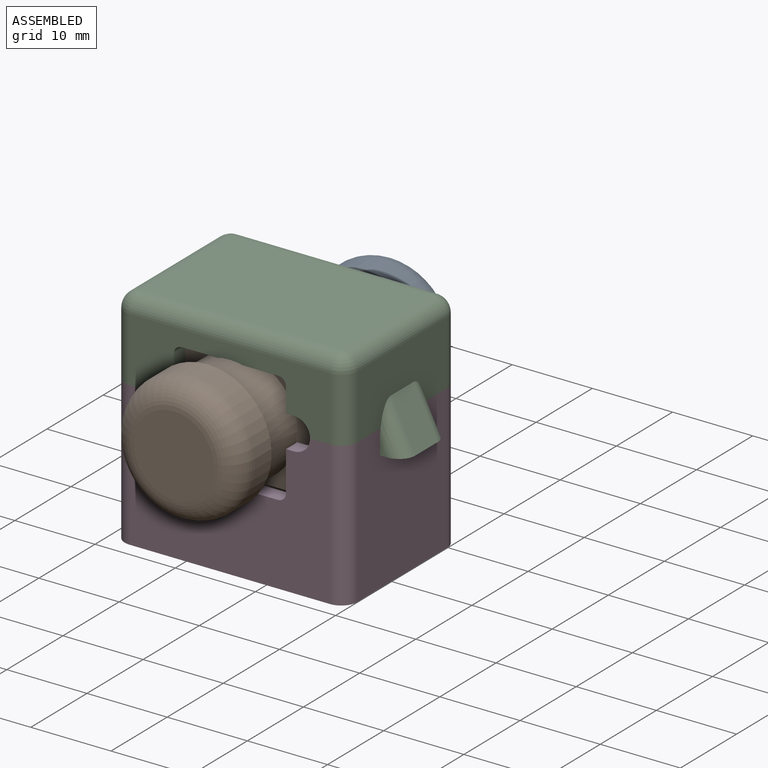
[diagram: assembled view]
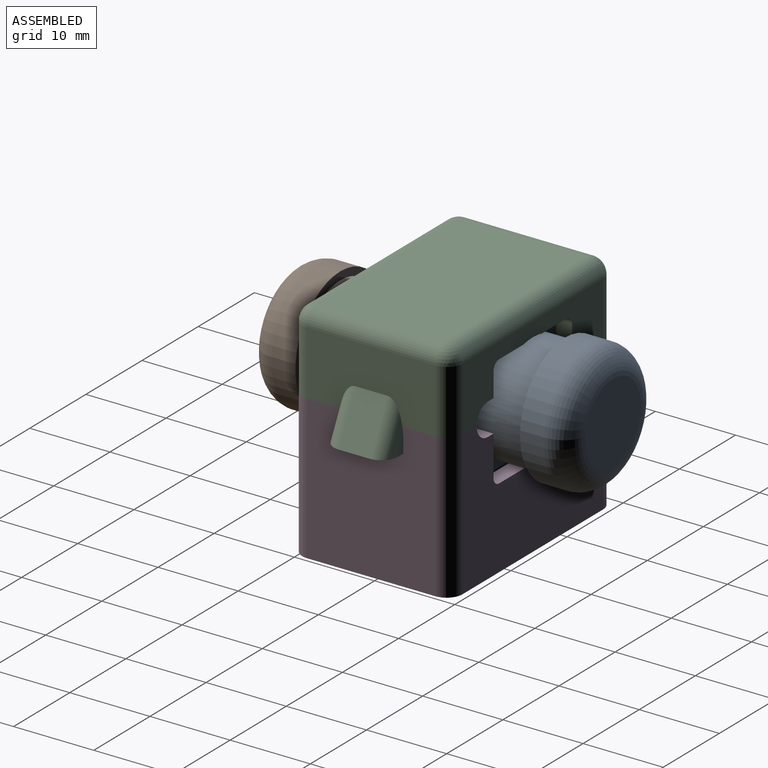
[diagram: assembled view, second angle]
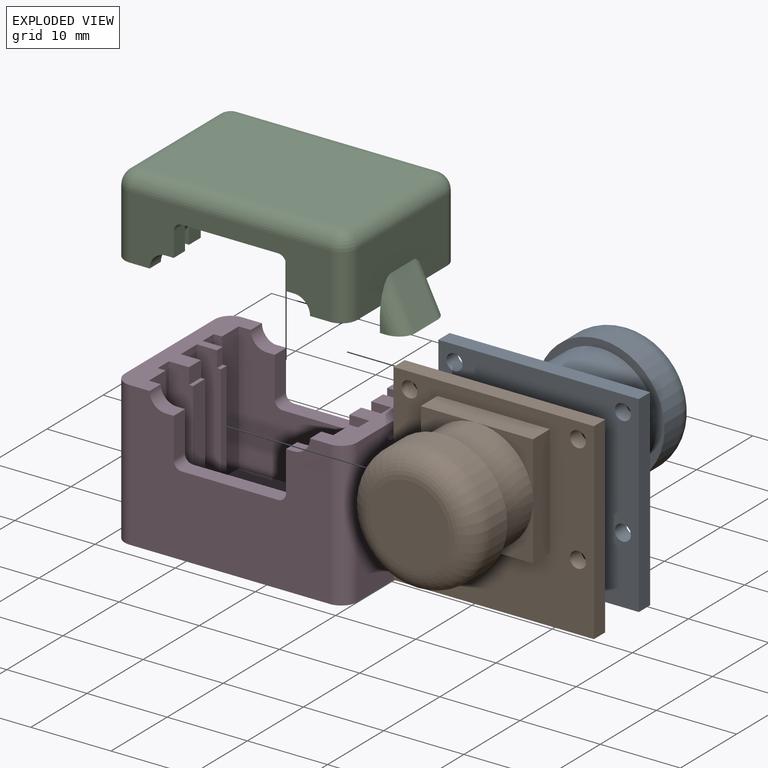
[diagram: exploded view]
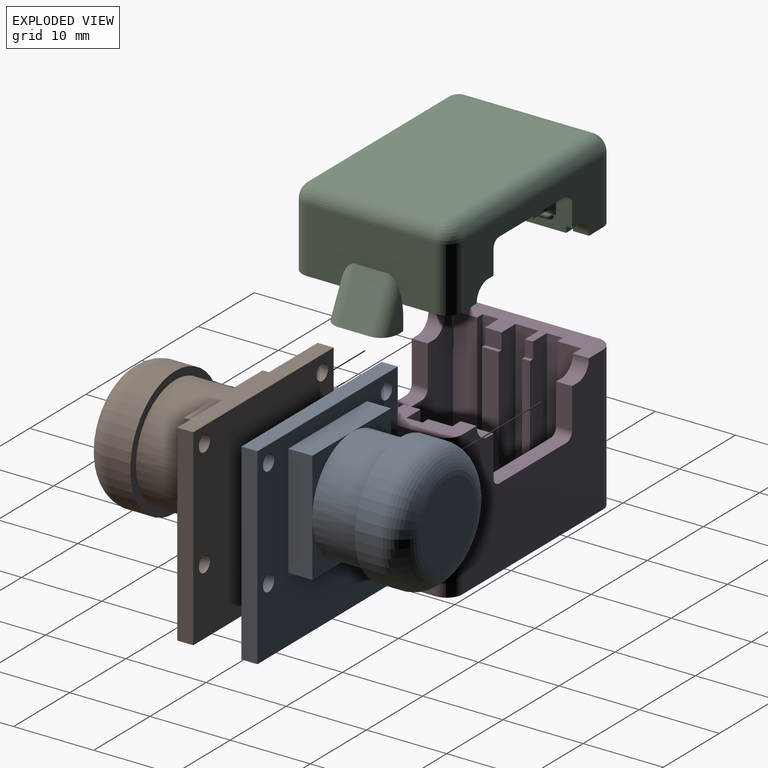
[diagram: exploded view, second angle]
ASSEMBLY  parts=4 mates=3
PART A: 23 faces, bbox 24x25x17 mm
  f0: plane 7x7mm, normal (0,0,1), area 10.5mm2, adj f13,f16,f18
  f1: plane 7x7mm, normal (0,0,1), area 10.5mm2, adj f13,f14,f18
  f2: plane 7x7mm, normal (0,0,1), area 10.5mm2, adj f14,f15,f18
  f3: plane 25x24mm, normal (0,0,1), area 391.4mm2, adj f5,f6,f7,f8,f9,f10,f11,f12
  f4: plane 25x24mm, normal (0,0,-1), area 587.4mm2, adj f5,f6,f7,f8,f9,f10,f11,f12
  f5: plane 24x2mm, normal (0,1,0), area 48mm2, adj f3,f4,f6,f8
  f6: plane 25x2mm, normal (-1,0,0), area 50mm2, adj f3,f4,f5,f7
  f7: plane 24x2mm, normal (0,-1,0), area 48mm2, adj f3,f4,f6,f8
  f8: plane 25x2mm, normal (1,0,0), area 50mm2, adj f3,f4,f5,f7
  f9: cylinder r=1mm len=2mm, axis (0,0,1), area 12.6mm2, adj f3,f4
  f10: cylinder r=1mm len=2mm, axis (0,0,1), area 12.6mm2, adj f3,f4
  f11: cylinder r=1mm len=2mm, axis (0,0,1), area 12.6mm2, adj f3,f4
  f12: cylinder r=1mm len=2mm, axis (0,0,1), area 12.6mm2, adj f3,f4
  f13: plane 14x3mm, normal (0,1,0), area 42mm2, adj f0,f1,f3,f14,f16
  f14: plane 14x3mm, normal (-1,0,0), area 42mm2, adj f1,f2,f3,f13,f15
  f15: plane 14x3mm, normal (0,-1,0), area 42mm2, adj f2,f3,f14,f16,f17
  f16: plane 14x3mm, normal (1,0,0), area 42mm2, adj f0,f3,f13,f15,f17
  f17: plane 7x7mm, normal (0,0,1), area 10.5mm2, adj f15,f16,f18
  f18: cylinder r=7mm len=14mm, axis (0,0,-1), area 263.9mm2, adj f0,f1,f2,f17,f21
  f19: cylinder r=8mm len=16mm, axis (0,0,-1), area 150.8mm2, adj f21,f22
  f20: plane 10x10mm, normal (0,0,1), area 78.5mm2, adj f22
  f21: plane 16x16mm, normal (0,0,-1), area 47.1mm2, adj f18,f19
  f22: torus R=5mm, axis (0,0,1), area 204.6mm2, adj f19,f20
PART B: same geometry as A
PART C: 94 faces, bbox 35x20x13.9 mm
  f0: plane 8.02x3.02mm, normal (-1,0,0), area 19.1mm2, adj f2,f81,f82,f83,f87,f88,f89,f90
  f1: plane 8.02x3.02mm, normal (1,0,0), area 19.1mm2, adj f19,f77,f78,f79,f84,f85,f86,f92
  f2: plane 20x4.5mm, normal (0,0,1), area 64.8mm2, adj f0,f3,f4,f5,f8,f9,f11,f12
  f3: plane 25x8mm, normal (0,1,0), area 106.1mm2, adj f2,f17,f18,f19,f43,f44,f45,f58
  f4: plane 25x8mm, normal (0,-1,0), area 106.1mm2, adj f2,f15,f16,f19,f42,f46,f47,f56
  f5: plane 23x8mm, normal (0,-1,0), area 90.1mm2, adj f2,f17,f18,f19,f23,f40,f41,f43
  f6: plane 6x1mm, normal (1,0,0), area 6mm2, adj f26,f27,f41,f55
  f7: plane 6x2.1mm, normal (1,0,0), area 12.6mm2, adj f29,f30,f41,f52
  f8: plane 23x8mm, normal (0,1,0), area 90.1mm2, adj f2,f15,f16,f19,f33,f34,f41,f42
  f9: plane 8x3mm, normal (0,-1,0), area 23mm2, adj f2,f10,f36,f41,f50,f51
  f10: plane 6x2.1mm, normal (-1,0,0), area 12.6mm2, adj f9,f11,f41,f50
  f11: plane 8x3mm, normal (0,1,0), area 23mm2, adj f2,f10,f37,f41,f50,f51
  f12: plane 8x3mm, normal (0,-1,0), area 23mm2, adj f2,f13,f37,f41,f48,f49
  f13: plane 6x2.1mm, normal (-1,0,0), area 12.6mm2, adj f12,f14,f41,f48
  f14: plane 8x3mm, normal (0,1,0), area 23mm2, adj f2,f13,f38,f41,f48,f49
  f15: plane 3x2mm, normal (-1,0,0), area 6mm2, adj f4,f8,f47,f61
  f16: plane 3x2mm, normal (1,0,0), area 6mm2, adj f4,f8,f46,f60
  f17: plane 3x2mm, normal (1,0,0), area 6mm2, adj f3,f5,f45,f63
  f18: plane 3x2mm, normal (-1,0,0), area 6mm2, adj f3,f5,f44,f62
  f19: plane 20x4.5mm, normal (0,0,1), area 62mm2, adj f1,f3,f4,f5,f8,f20,f23,f24
  f20: plane 16x8mm, normal (-1,0,0), area 107.7mm2, adj f19,f64,f65,f71,f76,f92,f93
  f21: plane 16x8mm, normal (1,0,0), area 107.7mm2, adj f2,f66,f67,f72,f80,f90,f91
  f22: plane 25x16mm, normal (0,0,-1), area 400mm2, adj f68,f71,f72,f75
  f23: plane 8x3mm, normal (1,0,0), area 24mm2, adj f5,f19,f24,f41
  f24: plane 8x1mm, normal (0,-1,0), area 8mm2, adj f19,f23,f25,f41
  f25: plane 8x2mm, normal (1,0,0), area 16mm2, adj f19,f24,f26,f41
  f26: plane 8x3mm, normal (0,1,0), area 23mm2, adj f6,f19,f25,f41,f54,f55
  f27: plane 8x3mm, normal (0,-1,0), area 23mm2, adj f6,f19,f28,f41,f54,f55
  f28: plane 8x2.9mm, normal (1,0,0), area 23.2mm2, adj f19,f27,f29,f41
  f29: plane 8x3mm, normal (0,1,0), area 23mm2, adj f7,f19,f28,f41,f52,f53
  f30: plane 8x3mm, normal (0,-1,0), area 23mm2, adj f7,f19,f31,f41,f52,f53
  f31: plane 8x2mm, normal (1,0,0), area 16mm2, adj f19,f30,f32,f41
  f32: plane 8x1mm, normal (0,1,0), area 8mm2, adj f19,f31,f33,f41
  f33: plane 8x3mm, normal (1,0,0), area 24mm2, adj f8,f19,f32,f41
  f34: plane 8x3mm, normal (-1,0,0), area 24mm2, adj f2,f8,f35,f41
  f35: plane 8x1mm, normal (0,1,0), area 8mm2, adj f2,f34,f36,f41
  f36: plane 8x2mm, normal (-1,0,0), area 16mm2, adj f2,f9,f35,f41
  f37: plane 8x1.8mm, normal (-1,0,0), area 14.4mm2, adj f2,f11,f12,f41
  f38: plane 8x2mm, normal (-1,0,0), area 16mm2, adj f2,f14,f39,f41
  f39: plane 8x1mm, normal (0,-1,0), area 8mm2, adj f2,f38,f40,f41
  f40: plane 8x3mm, normal (-1,0,0), area 24mm2, adj f2,f5,f39,f41
  f41: plane 25x16mm, normal (0,0,1), area 366.1mm2, adj f5,f6,f7,f8,f9,f10,f11,f12
  f42: plane 12x2mm, normal (0,0,1), area 24mm2, adj f4,f8,f60,f61
  f43: plane 12x2mm, normal (0,0,1), area 24mm2, adj f3,f5,f62,f63
  f44: plane 2x1mm, normal (0,0,1), area 2mm2, adj f3,f5,f18,f59
  f45: plane 2x1mm, normal (0,0,1), area 2mm2, adj f3,f5,f17,f58
  f46: plane 2x1mm, normal (0,0,1), area 2mm2, adj f4,f8,f16,f56
  f47: plane 2x1mm, normal (0,0,1), area 2mm2, adj f4,f8,f15,f57
  f48: plane 2.1x0.5mm, normal (0,0,1), area 1.1mm2, adj f12,f13,f14,f49
  f49: plane 2.1x2mm, normal (-1,0,0), area 4.2mm2, adj f2,f12,f14,f48
  f50: plane 2.1x0.5mm, normal (0,0,1), area 1.1mm2, adj f9,f10,f11,f51
  f51: plane 2.1x2mm, normal (-1,0,0), area 4.2mm2, adj f2,f9,f11,f50
  f52: plane 2.1x0.5mm, normal (0,0,1), area 1.1mm2, adj f7,f29,f30,f53
  f53: plane 2.1x2mm, normal (1,0,0), area 4.2mm2, adj f19,f29,f30,f52
  f54: plane 2x1mm, normal (1,0,0), area 2mm2, adj f19,f26,f27,f55
  f55: plane 1x0.5mm, normal (0,0,1), area 0.5mm2, adj f6,f26,f27,f54
  f56: cylinder r=2mm len=2mm, axis (0,-1,0), area 6.3mm2, adj f4,f8,f19,f46
  f57: cylinder r=2mm len=2mm, axis (0,1,0), area 6.3mm2, adj f2,f4,f8,f47
  f58: cylinder r=2mm len=2mm, axis (0,-1,0), area 6.3mm2, adj f3,f5,f19,f45
  f59: cylinder r=2mm len=2mm, axis (0,1,0), area 6.3mm2, adj f2,f3,f5,f44
  f60: cylinder r=1mm len=2mm, axis (0,-1,0), area 3.1mm2, adj f4,f8,f16,f42
  f61: cylinder r=1mm len=2mm, axis (0,1,0), area 3.1mm2, adj f4,f8,f15,f42
  f62: cylinder r=1mm len=2mm, axis (0,1,0), area 3.1mm2, adj f3,f5,f18,f43
  f63: cylinder r=1mm len=2mm, axis (0,-1,0), area 3.1mm2, adj f3,f5,f17,f43
  f64: cylinder r=2mm len=8mm, axis (0,0,1), area 25.1mm2, adj f3,f19,f20,f73
  f65: cylinder r=2mm len=8mm, axis (0,0,-1), area 25.1mm2, adj f4,f19,f20,f69
  f66: cylinder r=2mm len=8mm, axis (0,0,1), area 25.1mm2, adj f2,f4,f21,f70
  f67: cylinder r=2mm len=8mm, axis (0,0,-1), area 25.1mm2, adj f2,f3,f21,f74
  f68: cylinder r=2mm len=25mm, axis (1,0,0), area 78.5mm2, adj f4,f22,f69,f70
  f69: sphere r=2mm, area 6.3mm2, adj f65,f68,f71
  f70: sphere r=2mm, area 6.3mm2, adj f66,f68,f72
  f71: cylinder r=2mm len=16mm, axis (0,-1,0), area 50.3mm2, adj f20,f22,f69,f73
  f72: cylinder r=2mm len=16mm, axis (0,1,0), area 50.3mm2, adj f21,f22,f70,f74
  f73: sphere r=2mm, area 6.3mm2, adj f64,f71,f75
  f74: sphere r=2mm, area 6.3mm2, adj f67,f72,f75
  f75: cylinder r=2mm len=25mm, axis (-1,0,0), area 78.5mm2, adj f3,f22,f73,f74
  f76: plane 6x4mm, normal (-0.89,0,-0.45), area 26.8mm2, adj f20,f77,f92,f93
  f77: plane 8x3mm, normal (0,0,1), area 22.1mm2, adj f1,f76,f78,f79,f92,f93
  f78: plane 1.53x0.76mm, normal (0,-1,0), area 0.6mm2, adj f1,f77,f93
  f79: plane 1.53x0.76mm, normal (0,1,0), area 0.6mm2, adj f1,f77,f92
  f80: plane 6x4mm, normal (0.89,0,-0.45), area 26.8mm2, adj f21,f81,f90,f91
  f81: plane 8x3mm, normal (0,0,1), area 22.1mm2, adj f0,f80,f82,f83,f90,f91
  f82: plane 1.53x0.76mm, normal (0,-1,0), area 0.6mm2, adj f0,f81,f91
  f83: plane 1.53x0.76mm, normal (0,1,0), area 0.6mm2, adj f0,f81,f90
  f84: cylinder r=0.5mm len=4mm, axis (0,1,0), area 6.3mm2, adj f1,f85,f86
  f85: sphere r=0.5mm, area 0.8mm2, adj f1,f84
  f86: sphere r=0.5mm, area 0.8mm2, adj f1,f84
  f87: cylinder r=0.5mm len=4mm, axis (0,-1,0), area 6.3mm2, adj f0,f88,f89
  f88: sphere r=0.5mm, area 0.8mm2, adj f0,f87
  f89: sphere r=0.5mm, area 0.8mm2, adj f0,f87
  f90: cylinder r=2mm len=6.89mm, axis (0.45,0,0.89), area 15.4mm2, adj f0,f21,f80,f81,f83
  f91: cylinder r=2mm len=6.89mm, axis (-0.45,0,-0.89), area 15.4mm2, adj f0,f21,f80,f81,f82
  f92: cylinder r=2mm len=6.89mm, axis (0.45,0,-0.89), area 15.4mm2, adj f1,f20,f76,f77,f79
  f93: cylinder r=2mm len=6.89mm, axis (-0.45,0,0.89), area 15.4mm2, adj f1,f20,f76,f77,f78
PART D: 92 faces, bbox 29x20x18 mm
  f0: plane 18x16mm, normal (1,0,0), area 283.2mm2, adj f3,f21,f64,f65,f89,f90,f91
  f1: plane 18x16mm, normal (-1,0,0), area 283.2mm2, adj f20,f21,f62,f63,f86,f87,f88
  f2: plane 25x16mm, normal (0,0,1), area 197.5mm2, adj f6,f7,f8,f9,f10,f11,f12,f13
  f3: plane 20x4.5mm, normal (0,0,1), area 64.8mm2, adj f0,f4,f5,f6,f9,f10,f12,f13
  f4: plane 25x18mm, normal (0,1,0), area 328.1mm2, adj f3,f18,f19,f20,f21,f41,f42,f43
  f5: plane 25x18mm, normal (0,-1,0), area 328.1mm2, adj f3,f16,f17,f20,f21,f40,f44,f45
  f6: plane 23x16mm, normal (0,-1,0), area 246.1mm2, adj f2,f3,f18,f19,f20,f22,f39,f41
  f7: plane 14x1mm, normal (1,0,0), area 14mm2, adj f2,f25,f26,f53
  f8: plane 14x2.1mm, normal (1,0,0), area 29.4mm2, adj f2,f28,f29,f50
  f9: plane 23x16mm, normal (0,1,0), area 246.1mm2, adj f2,f3,f16,f17,f20,f32,f33,f40
  f10: plane 16x3mm, normal (0,-1,0), area 47mm2, adj f2,f3,f11,f35,f48,f49
  f11: plane 14x2.1mm, normal (-1,0,0), area 29.4mm2, adj f2,f10,f12,f48
  f12: plane 16x3mm, normal (0,1,0), area 47mm2, adj f2,f3,f11,f36,f48,f49
  f13: plane 16x3mm, normal (0,-1,0), area 47mm2, adj f2,f3,f14,f36,f46,f47
  f14: plane 14x2.1mm, normal (-1,0,0), area 29.4mm2, adj f2,f13,f15,f46
  f15: plane 16x3mm, normal (0,1,0), area 47mm2, adj f2,f3,f14,f37,f46,f47
  f16: plane 5x2mm, normal (-1,0,0), area 10mm2, adj f5,f9,f45,f59
  f17: plane 5x2mm, normal (1,0,0), area 10mm2, adj f5,f9,f44,f58
  f18: plane 5x2mm, normal (1,0,0), area 10mm2, adj f4,f6,f43,f61
  f19: plane 5x2mm, normal (-1,0,0), area 10mm2, adj f4,f6,f42,f60
  f20: plane 20x4.5mm, normal (0,0,1), area 62mm2, adj f1,f4,f5,f6,f9,f22,f23,f24
  f21: plane 29x20mm, normal (0,0,-1), area 408mm2, adj f0,f1,f4,f5,f62,f63,f64,f65
  f22: plane 16x3mm, normal (1,0,0), area 48mm2, adj f2,f6,f20,f23
  f23: plane 16x1mm, normal (0,-1,0), area 16mm2, adj f2,f20,f22,f24
  f24: plane 16x2mm, normal (1,0,0), area 32mm2, adj f2,f20,f23,f25
  f25: plane 16x3mm, normal (0,1,0), area 47mm2, adj f2,f7,f20,f24,f52,f53
  f26: plane 16x3mm, normal (0,-1,0), area 47mm2, adj f2,f7,f20,f27,f52,f53
  f27: plane 16x2.9mm, normal (1,0,0), area 46.4mm2, adj f2,f20,f26,f28
  f28: plane 16x3mm, normal (0,1,0), area 47mm2, adj f2,f8,f20,f27,f50,f51
  f29: plane 16x3mm, normal (0,-1,0), area 47mm2, adj f2,f8,f20,f30,f50,f51
  f30: plane 16x2mm, normal (1,0,0), area 32mm2, adj f2,f20,f29,f31
  f31: plane 16x1mm, normal (0,1,0), area 16mm2, adj f2,f20,f30,f32
  f32: plane 16x3mm, normal (1,0,0), area 48mm2, adj f2,f9,f20,f31
  f33: plane 16x3mm, normal (-1,0,0), area 48mm2, adj f2,f3,f9,f34
  f34: plane 16x1mm, normal (0,1,0), area 16mm2, adj f2,f3,f33,f35
  f35: plane 16x2mm, normal (-1,0,0), area 32mm2, adj f2,f3,f10,f34
  f36: plane 16x1.8mm, normal (-1,0,0), area 28.8mm2, adj f2,f3,f12,f13
  f37: plane 16x2mm, normal (-1,0,0), area 32mm2, adj f2,f3,f15,f38
  f38: plane 16x1mm, normal (0,-1,0), area 16mm2, adj f2,f3,f37,f39
  f39: plane 16x3mm, normal (-1,0,0), area 48mm2, adj f2,f3,f6,f38
  f40: plane 12x2mm, normal (0,0,1), area 24mm2, adj f5,f9,f58,f59
  f41: plane 12x2mm, normal (0,0,1), area 24mm2, adj f4,f6,f60,f61
  f42: plane 2x1mm, normal (0,0,1), area 2mm2, adj f4,f6,f19,f57
  f43: plane 2x1mm, normal (0,0,1), area 2mm2, adj f4,f6,f18,f56
  f44: plane 2x1mm, normal (0,0,1), area 2mm2, adj f5,f9,f17,f54
  f45: plane 2x1mm, normal (0,0,1), area 2mm2, adj f5,f9,f16,f55
  f46: plane 2.1x0.5mm, normal (0,0,1), area 1.1mm2, adj f13,f14,f15,f47
  f47: plane 2.1x2mm, normal (-1,0,0), area 4.2mm2, adj f3,f13,f15,f46
  f48: plane 2.1x0.5mm, normal (0,0,1), area 1.1mm2, adj f10,f11,f12,f49
  f49: plane 2.1x2mm, normal (-1,0,0), area 4.2mm2, adj f3,f10,f12,f48
  f50: plane 2.1x0.5mm, normal (0,0,1), area 1.1mm2, adj f8,f28,f29,f51
  f51: plane 2.1x2mm, normal (1,0,0), area 4.2mm2, adj f20,f28,f29,f50
  f52: plane 2x1mm, normal (1,0,0), area 2mm2, adj f20,f25,f26,f53
  f53: plane 1x0.5mm, normal (0,0,1), area 0.5mm2, adj f7,f25,f26,f52
  f54: cylinder r=2mm len=2mm, axis (0,-1,0), area 6.3mm2, adj f5,f9,f20,f44
  f55: cylinder r=2mm len=2mm, axis (0,1,0), area 6.3mm2, adj f3,f5,f9,f45
  f56: cylinder r=2mm len=2mm, axis (0,-1,0), area 6.3mm2, adj f4,f6,f20,f43
  f57: cylinder r=2mm len=2mm, axis (0,1,0), area 6.3mm2, adj f3,f4,f6,f42
  f58: cylinder r=1mm len=2mm, axis (0,-1,0), area 3.1mm2, adj f5,f9,f17,f40
  f59: cylinder r=1mm len=2mm, axis (0,1,0), area 3.1mm2, adj f5,f9,f16,f40
  f60: cylinder r=1mm len=2mm, axis (0,1,0), area 3.1mm2, adj f4,f6,f19,f41
  f61: cylinder r=1mm len=2mm, axis (0,-1,0), area 3.1mm2, adj f4,f6,f18,f41
  f62: cylinder r=2mm len=18mm, axis (0,0,1), area 56.5mm2, adj f1,f4,f20,f21
  f63: cylinder r=2mm len=18mm, axis (0,0,-1), area 56.5mm2, adj f1,f5,f20,f21
  f64: cylinder r=2mm len=18mm, axis (0,0,1), area 56.5mm2, adj f0,f3,f5,f21
  f65: cylinder r=2mm len=18mm, axis (0,0,-1), area 56.5mm2, adj f0,f3,f4,f21
  f66: plane 3.05x2mm, normal (1,0,0), area 6.1mm2, adj f2,f21,f75,f78
  f67: plane 2x1mm, normal (0,1,0), area 2mm2, adj f2,f21,f78,f79
  f68: plane 2x1.9mm, normal (1,0,0), area 3.8mm2, adj f2,f21,f79,f80
  f69: plane 2x1mm, normal (0,-1,0), area 2mm2, adj f2,f21,f80,f81
  f70: plane 3.05x2mm, normal (1,0,0), area 6.1mm2, adj f2,f21,f71,f81
  f71: plane 16x2mm, normal (0,1,0), area 32mm2, adj f2,f21,f70,f72
  f72: plane 3.05x2mm, normal (-1,0,0), area 6.1mm2, adj f2,f21,f71,f82
  f73: plane 2x1mm, normal (0,-1,0), area 2mm2, adj f2,f21,f82,f83
  f74: plane 2x1.9mm, normal (-1,0,0), area 3.8mm2, adj f2,f21,f83,f84
  f75: plane 16x2mm, normal (0,-1,0), area 32mm2, adj f2,f21,f66,f77
  f76: plane 2x1mm, normal (0,1,0), area 2mm2, adj f2,f21,f84,f85
  f77: plane 3.05x2mm, normal (-1,0,0), area 6.1mm2, adj f2,f21,f75,f85
  f78: cylinder r=1mm len=2mm, axis (0,0,-1), area 3.1mm2, adj f2,f21,f66,f67
  f79: cylinder r=1mm len=2mm, axis (0,0,1), area 3.1mm2, adj f2,f21,f67,f68
  f80: cylinder r=1mm len=2mm, axis (0,0,1), area 3.1mm2, adj f2,f21,f68,f69
  f81: cylinder r=1mm len=2mm, axis (0,0,-1), area 3.1mm2, adj f2,f21,f69,f70
  f82: cylinder r=1mm len=2mm, axis (0,0,-1), area 3.1mm2, adj f2,f21,f72,f73
  f83: cylinder r=1mm len=2mm, axis (0,0,1), area 3.1mm2, adj f2,f21,f73,f74
  f84: cylinder r=1mm len=2mm, axis (0,0,1), area 3.1mm2, adj f2,f21,f74,f76
  f85: cylinder r=1mm len=2mm, axis (0,0,-1), area 3.1mm2, adj f2,f21,f76,f77
  f86: cylinder r=0.5mm len=4mm, axis (0,-1,0), area 6.3mm2, adj f1,f87,f88
  f87: sphere r=0.5mm, area 0.8mm2, adj f1,f86
  f88: sphere r=0.5mm, area 0.8mm2, adj f1,f86
  f89: cylinder r=0.5mm len=4mm, axis (0,1,0), area 6.3mm2, adj f0,f90,f91
  f90: sphere r=0.5mm, area 0.8mm2, adj f0,f89
  f91: sphere r=0.5mm, area 0.8mm2, adj f0,f89
PLACE A rot(axis=(-0.58,0.58,0.58),120deg) t=(26.58,33.34,19.65)mm
PLACE B rot(axis=(0.58,0.58,-0.58),120deg) t=(26.58,27.34,19.65)mm
PLACE C rot(axis=(0,1,0),180deg) t=(26.58,30.34,33.65)mm
PLACE D t=(26.58,30.34,5.65)mm fixed
MATE planar A.f5 <-> D.f24  axis (-1,0,0) through (14.08,33.34,7.65)mm
MATE planar B.f7 <-> D.f30  axis (-1,0,0) through (14.08,27.34,7.65)mm
MATE planar C.f2 <-> D.f20  axis (0,0,-1) through (15.08,22.34,23.65)mm
